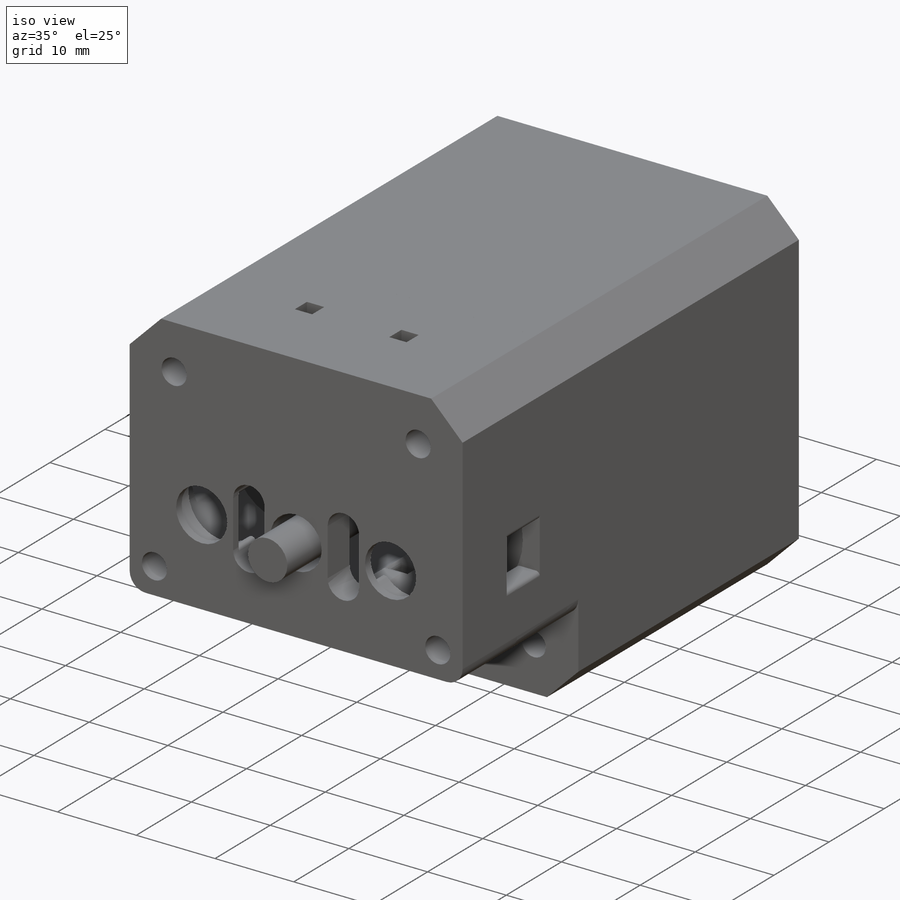
[diagram: iso view]
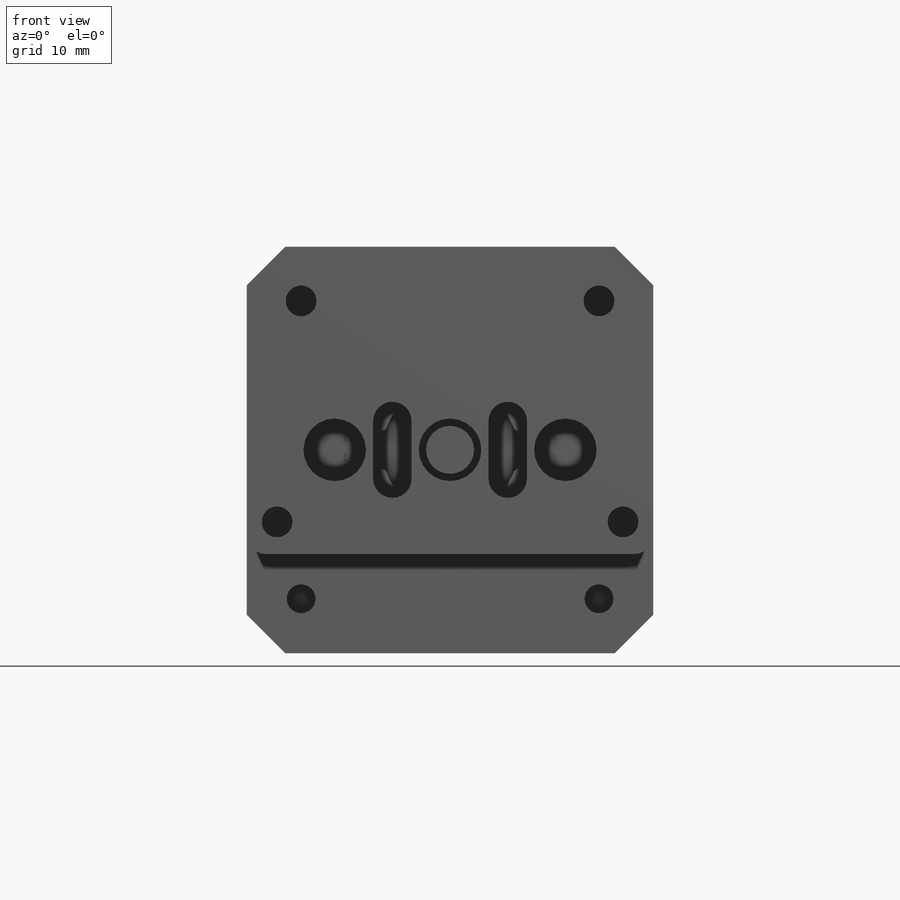
[diagram: front view]
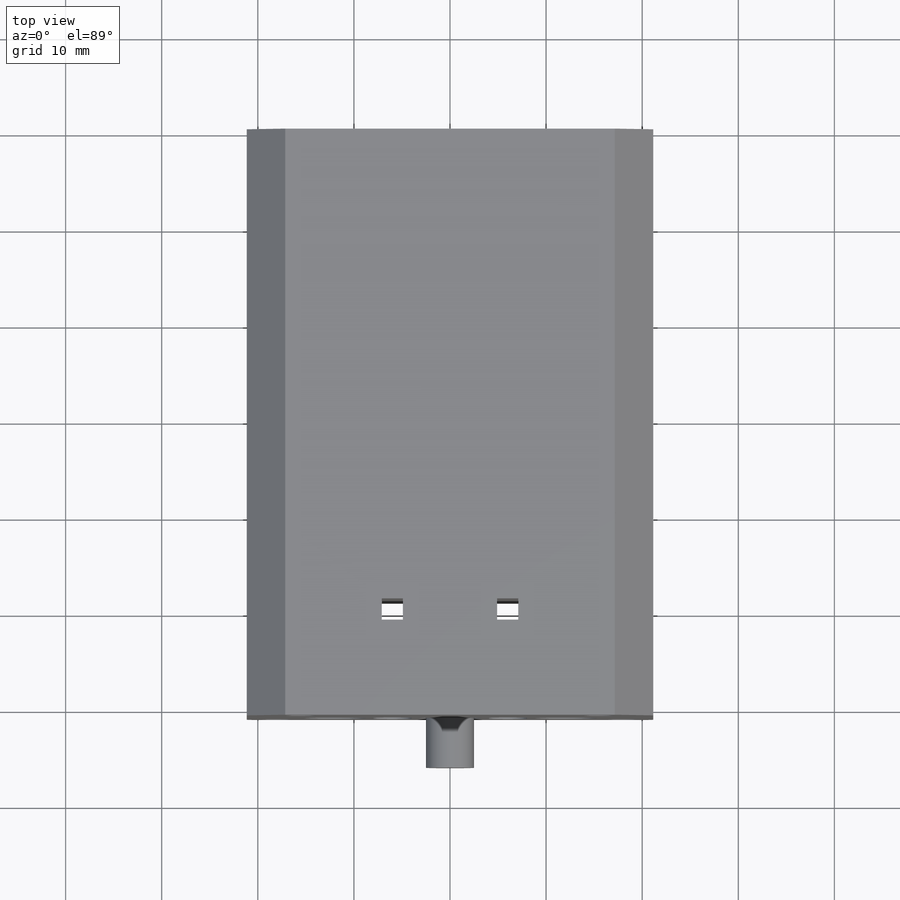
[diagram: top view]
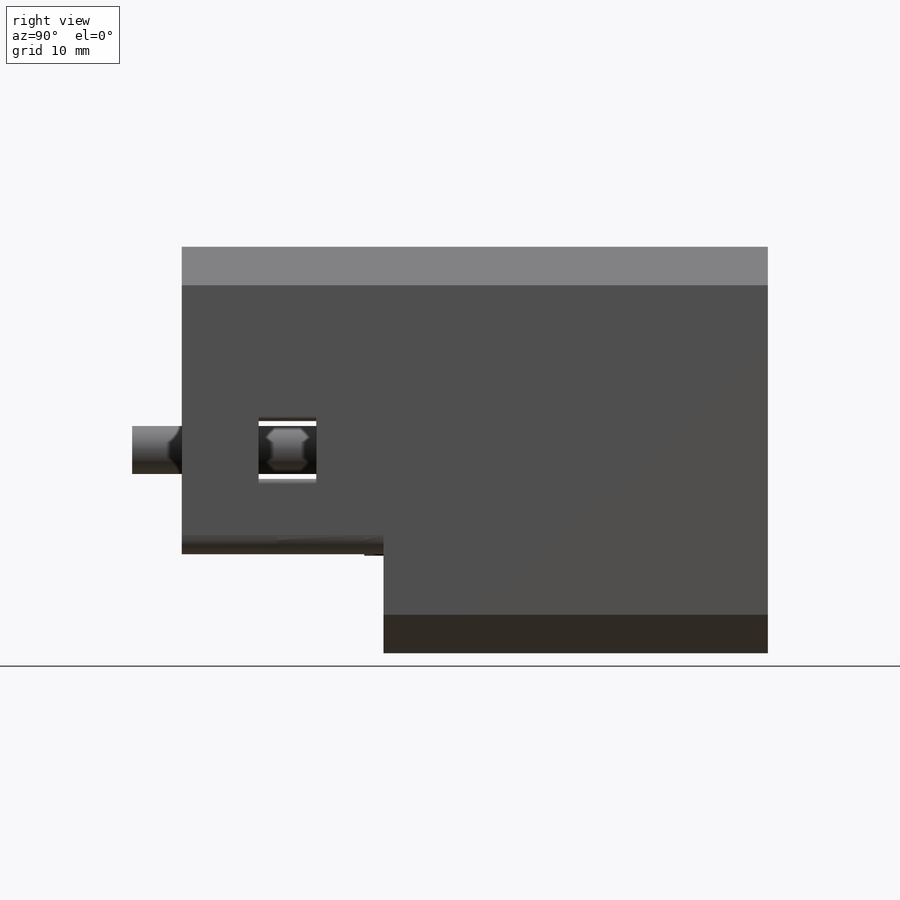
[diagram: right view]
SOLIDWORKS PART (.sldprt)
format: sldprt  version: not decoded by parser v0  size: 1,362,944 bytes
history: native  units: mm
features: sketch x29, cut_extrude x16, extrude x10, fillet x7, surface_op x2, material x1, revolve x1, chamfer x1, boolean_combine x1, mirror x1 (+13 scaffold rows collapsed; 1 parser-record rows omitted)
feature tree (83):
  scaffold x13  (default folders/planes/origin — collapsed)
  material  "Material <not specified>"
  parser-record x1  (decoder bookkeeping rows leaked as tree rows — omitted from the tree; the rows remain in map.json)
  sketch  "Sketch1"  dims[D1=42.3mm D2=42.3mm]
  extrude  "Boss-Extrude1"  Depth=40mm
  sketch  "Sketch2"  dims[D1=11.0mm D2=2.0mm D3=2.5mm]
  revolve  "Revolve1"  Angle=360deg
  chamfer  "Chamfer1"  Distance=4mm Angle=45deg
  sketch  "Sketch3"  dims[D3=3.0mm D1=31.0mm D2=31.0mm]
  cut_extrude  "Cut-Extrude1"  Depth=5mm
  sketch  "Sketch5"  dims[c1.D2=32.0mm c1.D3=34.3mm c1.D1=0.0mm c2.D3=0.1mm]
  extrude  "Boss-Extrude2"  Depth=2mm
  sketch  "Sketch20"  dims[D1=0.0mm]
  extrude  "Boss-Extrude4"  Depth=19mm
  sketch  "Sketch6"
  extrude  "Boss-Extrude3"  [1 undecoded]
  sketch  "Sketch7"  dims[D1=3.2mm]
  cut_extrude  "Cut-Extrude2"  [1 undecoded]
  sketch  "Sketch8"  dims[D3=2.2mm D1=6.0mm D2=10.0mm]
  cut_extrude  "Cut-Extrude3"  [1 undecoded]
  sketch  "Sketch9"  dims[D1=0.0mm]
  cut_extrude  "Cut-Extrude4"  [1 undecoded]
  sketch  "Sketch10"  dims[D1=14.0mm]
  cut_extrude  "Cut-Extrude5"  [1 undecoded]
  sketch  "Sketch13"  dims[D2=14.0mm D1=12.0mm]
  cut_extrude  "Cut-Extrude7"  Depth=3.5mm
  fillet  "Fillet1"  Radius=0.5mm
  sketch  "Sketch14"  dims[D2=6.5mm D1=12.0mm]
  cut_extrude  "Cut-Extrude8"  [1 undecoded]
  sketch  "Sketch17"  dims[c1.D3=3.2mm c1.D1=7.1mm c1.D2=~16.05952mm c2.D1=7.5mm c2.D2=18.0mm]
  cut_extrude  "Cut-Extrude11"  [1 undecoded]
  sketch  "Sketch47"  dims[D1=2.5mm]
  cut_extrude  "Cut-Extrude27"  [1 undecoded]
  boolean_combine  "Combine1"
  sketch  "Sketch48"
  surface_op  "Surface-Extrude2"
  sketch  "Sketch41"  dims[D1=9.0mm D2=4.0mm]
  cut_extrude  "Cut-Extrude24"  Depth=3mm
  sketch  "Sketch19"  dims[D1=2.0mm D2=9.8mm D3=~26.847142mm]
  surface_op  "Surface-Extrude1"
  sketch  "Sketch36"  dims[c1.D1=2.0mm c1.D2=2.0mm c2.D1=2.0mm]
  extrude  "Boss-Extrude9"  Depth=2mm
  sketch  "Sketch39"  dims[D1=0.0mm D2=0.0mm]
  extrude  "Boss-Extrude10"  Depth=2mm
  sketch  "Sketch37"  dims[D1=14.0mm D2=12.0mm]
  cut_extrude  "Cut-Extrude20"  [1 undecoded]
  sketch  "Sketch38"  dims[D1=14.0mm]
  cut_extrude  "Cut-Extrude21"  [1 undecoded]
  fillet  "Fillet10"  Radius=1mm
  fillet  "Fillet11"  Radius=0.5mm
  sketch  "Sketch40"  dims[D1=6.0mm D2=6.0mm D3=13.0mm]
  cut_extrude  "Cut-Extrude22"  Depth=5mm
  sketch  "Sketch43"  dims[D1=0.0mm D2=0.0mm]
  extrude  "Boss-Extrude12"  [1 undecoded]
  fillet  "Fillet12"  Radius=0.5mm
  sketch  "Sketch44"  dims[D1=2.0mm]
  extrude  "Boss-Extrude13"  Depth=4mm
  sketch  "Sketch45"  dims[D1=0.0mm]
  cut_extrude  "Cut-Extrude25"  Depth=3mm
  fillet  "Fillet14"  Radius=0.5mm
  sketch  "Sketch46"  dims[D1=6.5mm]
  cut_extrude  "Cut-Extrude26"  [1 undecoded]
  fillet  "Fillet15"  Radius=2mm
  sketch  "Sketch49"  dims[D3=3.0mm D1=9.5mm D2=17.5mm]
  cut_extrude  "Cut-Extrude28"  [1 undecoded]
  mirror  "Mirror1"
  sketch  "Sketch50"  dims[D2=22.0mm D1=0.0mm]
  extrude  "Boss-Extrude14"  Depth=2mm
  fillet  "Fillet16"  Radius=0.5mm
  sketch  "Sketch51"  dims[D1=0.1mm]
  extrude  "Boss-Extrude15"  Depth=3mm
decode coverage: 49 of 68 modeling features carry decoded parameters
note: ~ marks probable driven/reference dimensions
note: 13 parameter values undecoded
summary: no parameter record found for 13 features
note: suppression state not decoded; provenance and decode notes live in map.json
